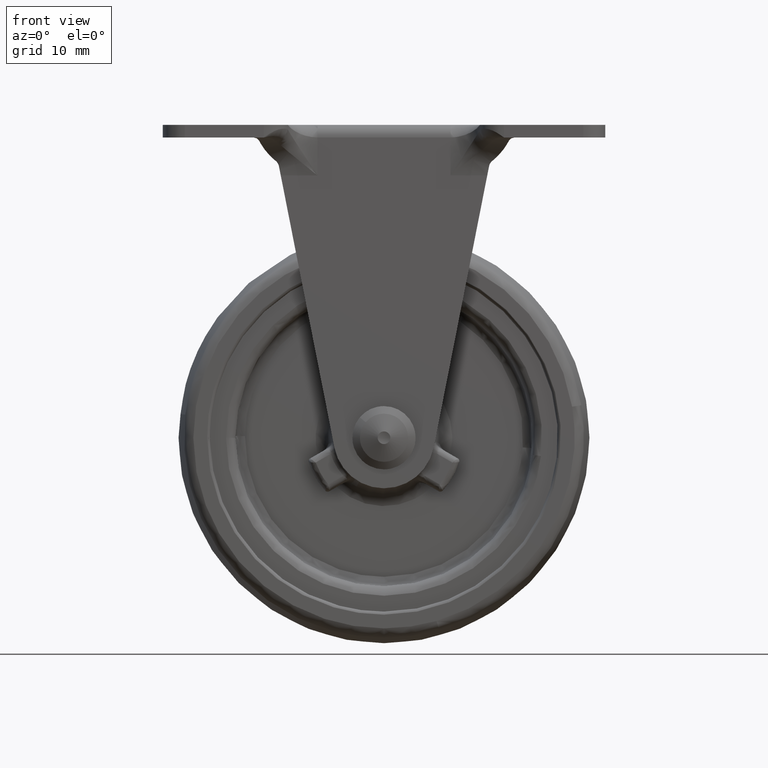
[diagram: clean part render]
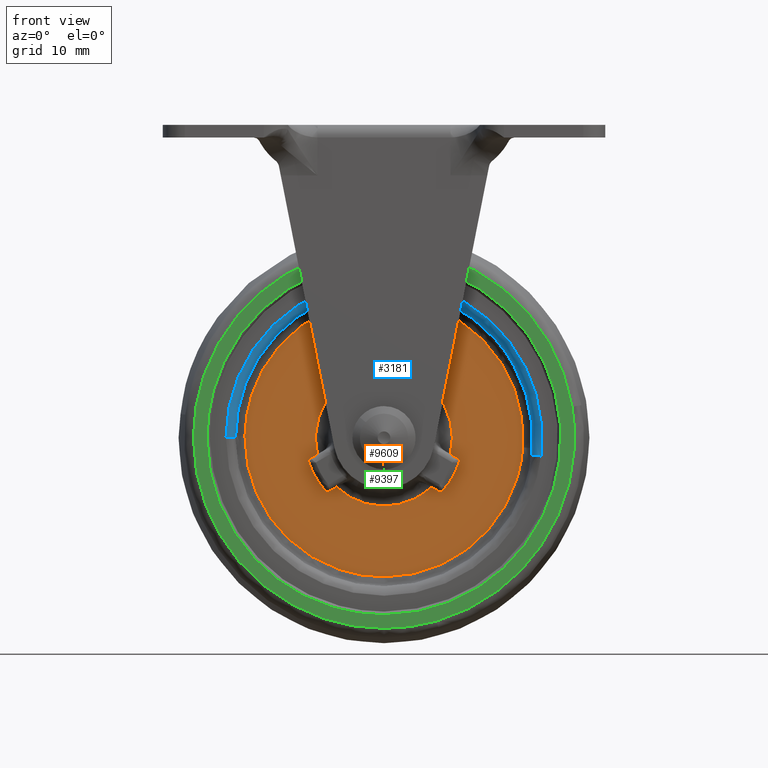
[diagram: same view with three faces highlighted in distinct colors, each labeled with its STEP entity id]
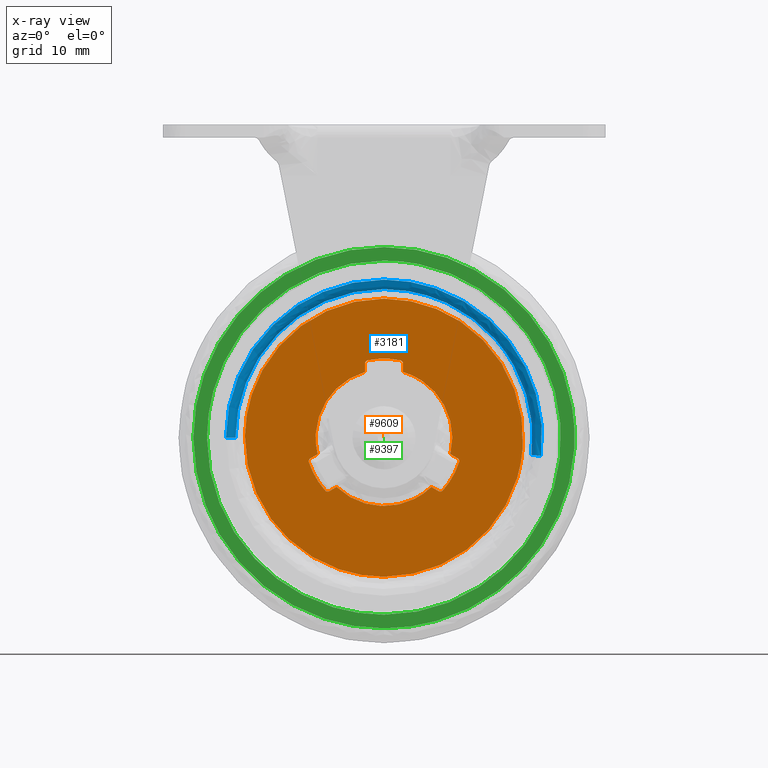
[diagram: x-ray of the same camera — body ghosted, the three highlighted faces saturated]
A machine part, front view with three faces highlighted in distinct colors.
The next image is the same camera in x-ray (body ghosted, the three faces saturated) — at least one of them is partly hidden behind the body in this view.
Their STEP definitions:

[orange] entity #9609 — the highlighted face is a freeform B-spline surface patch.
#3278=CARTESIAN_POINT('',(-45.998262989150760,-5.499999999999870,-47.723543121679739));
#3279=VERTEX_POINT('',#3278);
#3291=CARTESIAN_POINT('',(-24.0,-5.499999999999869,-25.999995999999999));
#3292=VERTEX_POINT('',#3291);
#3293=CARTESIAN_POINT('',(-24.0,-5.499999999999869,-25.999995999999999));
#3294=CARTESIAN_POINT('',(-24.982010979529850,-5.499999999999880,-25.999957823208160));
#3295=CARTESIAN_POINT('',(-26.946017736502419,-5.499999999999854,-26.131718309749779));
#3296=CARTESIAN_POINT('',(-30.146183976997069,-5.499999999999885,-26.783202365657331));
#3297=CARTESIAN_POINT('',(-33.254190081403912,-5.499999999999854,-27.939149059546271));
#3298=CARTESIAN_POINT('',(-36.059052005094557,-5.499999999999877,-29.524225523667400));
#3299=CARTESIAN_POINT('',(-38.560177870216492,-5.499999999999879,-31.406672927137478));
#3300=CARTESIAN_POINT('',(-40.518087805906433,-5.499999999999884,-33.375752485294853));
#3301=CARTESIAN_POINT('',(-42.232241590811817,-5.499999999999877,-35.608725749513361));
#3302=CARTESIAN_POINT('',(-43.484704123183043,-5.499999999999867,-37.673920440161403));
#3303=CARTESIAN_POINT('',(-44.834861749582927,-5.499999999999870,-40.644945362189027));
#3304=CARTESIAN_POINT('',(-45.750536066977027,-5.499999999999869,-43.976837344831239));
#3305=CARTESIAN_POINT('',(-45.984262688614869,-5.499999999999873,-46.607720035231068));
#3306=CARTESIAN_POINT('',(-45.998262989150760,-5.499999999999870,-47.723543121679739));
#3307=B_SPLINE_CURVE_WITH_KNOTS('',3,(#3293,#3294,#3295,#3296,#3297,#3298,#3299,#3300,#3301,#3302,#3303,#3304,#3305,#3306),.UNSPECIFIED.,.F.,.U.,(4,1,1,1,1,1,1,1,1,1,1,4),(0.000000081659664,2.946032737918472,5.892063993705015,9.775476441902150,12.855440841853660,15.533666623221171,19.149205066810701,21.157873090336221,23.969985242814030,26.380388072786769,30.933351359151271,34.281111963189481),.UNSPECIFIED.);
#3308=EDGE_CURVE('',#3292,#3279,#3307,.T.);
#3310=CARTESIAN_POINT('',(-2.053555156302315,-5.499999999999870,-49.534127536724938));
#3311=VERTEX_POINT('',#3310);
#3312=CARTESIAN_POINT('',(-2.053555156302315,-5.499999999999870,-49.534127536724938));
#3313=CARTESIAN_POINT('',(-1.925246541073994,-5.499999999999860,-47.705745235378743));
#3314=CARTESIAN_POINT('',(-2.108906257932459,-5.499999999999885,-44.395396828393181));
#3315=CARTESIAN_POINT('',(-3.385685043897567,-5.499999999999857,-39.946605080716267));
#3316=CARTESIAN_POINT('',(-5.260801342184311,-5.499999999999888,-36.241738775931182));
#3317=CARTESIAN_POINT('',(-7.463695229234387,-5.499999999999823,-33.351136120235303));
#3318=CARTESIAN_POINT('',(-10.017431120989460,-5.500000000000011,-30.911229002900491));
#3319=CARTESIAN_POINT('',(-12.482203399793979,-5.499999999999572,-29.169336853898422));
#3320=CARTESIAN_POINT('',(-15.246269047395350,-5.499999999999798,-27.750582178725530));
#3321=CARTESIAN_POINT('',(-17.595217876435409,-5.499999999999907,-26.903620184185261));
#3322=CARTESIAN_POINT('',(-20.569358046241572,-5.499999999999744,-26.194961810637480));
#3323=CARTESIAN_POINT('',(-22.590104026855840,-5.500000000000068,-25.999808461576141));
#3324=CARTESIAN_POINT('',(-24.0,-5.499999999999869,-25.999995999999999));
#3325=B_SPLINE_CURVE_WITH_KNOTS('',3,(#3312,#3313,#3314,#3315,#3316,#3317,#3318,#3319,#3320,#3321,#3322,#3323,#3324),.UNSPECIFIED.,.F.,.U.,(4,1,1,1,1,1,1,1,1,1,4),(0.000000091867442,5.498520121368934,9.869174589254833,13.816844987011949,17.905542060216600,20.725241592436159,24.390930131510942,26.928730019630532,30.030472745809568,31.863319717347149,36.092958564767159),.UNSPECIFIED.);
#3326=EDGE_CURVE('',#3311,#3292,#3325,.T.);
#3369=CARTESIAN_POINT('',(-24.0,-5.499999999999869,-69.999996000000010));
#3370=VERTEX_POINT('',#3369);
#3371=CARTESIAN_POINT('',(-24.0,-5.499999999999869,-69.999996000000010));
#3372=CARTESIAN_POINT('',(-23.011056579002972,-5.499999999999873,-70.000037746288868));
#3373=CARTESIAN_POINT('',(-21.033182365251189,-5.499999999999872,-69.866405722037882));
#3374=CARTESIAN_POINT('',(-18.204661330858070,-5.499999999999863,-69.286332413802498));
#3375=CARTESIAN_POINT('',(-15.149339060154229,-5.499999999999854,-68.235537582301163));
#3376=CARTESIAN_POINT('',(-12.282708441492980,-5.499999999999913,-66.729550567218837));
#3377=CARTESIAN_POINT('',(-9.694187248776828,-5.499999999999791,-64.793968558810860));
#3378=CARTESIAN_POINT('',(-7.778650005364352,-5.499999999999895,-62.932693356471091));
#3379=CARTESIAN_POINT('',(-6.006988974101125,-5.499999999999808,-60.766096312660650));
#3380=CARTESIAN_POINT('',(-4.526531532541039,-5.499999999999881,-58.385995195894047));
#3381=CARTESIAN_POINT('',(-3.213022184927659,-5.500000000000147,-55.434070009435580));
#3382=CARTESIAN_POINT('',(-2.392945042342785,-5.499999999999045,-52.527582331665002));
#3383=CARTESIAN_POINT('',(-2.116506838760938,-5.500000000000700,-50.434871964457081));
#3384=CARTESIAN_POINT('',(-2.053555156302315,-5.499999999999870,-49.534127536724938));
#3385=B_SPLINE_CURVE_WITH_KNOTS('',3,(#3371,#3372,#3373,#3374,#3375,#3376,#3377,#3378,#3379,#3380,#3381,#3382,#3383,#3384),.UNSPECIFIED.,.F.,.U.,(4,1,1,1,1,1,1,1,1,1,1,4),(0.000000074945177,2.966827643372710,5.933666677581261,8.642526960276875,12.641333136993669,15.608159254871969,18.316978037274861,20.638841195997841,23.992682041133801,26.701537706027651,30.313354762854480,33.022188892031863),.UNSPECIFIED.);
#3386=EDGE_CURVE('',#3370,#3311,#3385,.T.);
#3388=CARTESIAN_POINT('',(-45.998262989150760,-5.499999999999870,-47.723543121679739));
#3389=CARTESIAN_POINT('',(-46.018433669497249,-5.499999999999885,-49.310917432043802));
#3390=CARTESIAN_POINT('',(-45.730473191089217,-5.499999999999845,-52.308220028778393));
#3391=CARTESIAN_POINT('',(-44.586634245755647,-5.499999999999901,-56.008526372964511));
#3392=CARTESIAN_POINT('',(-42.991252262770267,-5.499999999999836,-59.274546232931513));
#3393=CARTESIAN_POINT('',(-41.201139291775007,-5.499999999999937,-61.858013077849790));
#3394=CARTESIAN_POINT('',(-38.820369167180367,-5.499999999999860,-64.360056390864415));
#3395=CARTESIAN_POINT('',(-36.641238951500370,-5.499999999999864,-66.079326986456962));
#3396=CARTESIAN_POINT('',(-33.955939647506213,-5.499999999999880,-67.693336310670830));
#3397=CARTESIAN_POINT('',(-31.365224273467430,-5.499999999999866,-68.813839897963831));
#3398=CARTESIAN_POINT('',(-27.855235534752349,-5.499999999999869,-69.758308427291865));
#3399=CARTESIAN_POINT('',(-25.496791687907869,-5.499999999999868,-70.000226523240514));
#3400=CARTESIAN_POINT('',(-24.0,-5.499999999999869,-69.999996000000010));
#3401=B_SPLINE_CURVE_WITH_KNOTS('',3,(#3388,#3389,#3390,#3391,#3392,#3393,#3394,#3395,#3396,#3397,#3398,#3399,#3400),.UNSPECIFIED.,.F.,.U.,(4,1,1,1,1,1,1,1,1,1,4),(0.000000085418876,4.762465655282668,8.980651805932158,11.565996852790169,15.648102333301470,18.369468243408701,21.907337732774959,23.948398352786558,27.758381943911189,30.343714610775720,34.834034870473431),.UNSPECIFIED.);
#3402=EDGE_CURVE('',#3279,#3370,#3401,.T.);
#8278=CARTESIAN_POINT('',(-34.499248944710253,-5.499999999999880,-50.597639485232797));
#8279=VERTEX_POINT('',#8278);
#8287=CARTESIAN_POINT('',(-35.664276000000001,-5.499999999999840,-51.270268399999892));
#8288=VERTEX_POINT('',#8287);
#8289=CARTESIAN_POINT('',(-34.499248944710253,-5.499999999999880,-50.597639485232797));
#8290=CARTESIAN_POINT('',(-35.664276000000001,-5.499999999999840,-51.270268399999892));
#8291=QUASI_UNIFORM_CURVE('',1,(#8289,#8290),.UNSPECIFIED.,.F.,.U.);
#8292=EDGE_CURVE('',#8279,#8288,#8291,.T.);
#8307=CARTESIAN_POINT('',(-31.499248722179701,-5.499999999999880,-55.793791524791402));
#8308=VERTEX_POINT('',#8307);
#8318=CARTESIAN_POINT('',(-32.664275153218099,-5.499999999999840,-56.466420011110102));
#8319=VERTEX_POINT('',#8318);
#8325=CARTESIAN_POINT('',(-32.664275153218099,-5.499999999999840,-56.466420011110102));
#8326=CARTESIAN_POINT('',(-31.499248722179701,-5.499999999999880,-55.793791524791402));
#8327=QUASI_UNIFORM_CURVE('',1,(#8325,#8326),.UNSPECIFIED.,.F.,.U.);
#8328=EDGE_CURVE('',#8319,#8308,#8327,.T.);
#8349=CARTESIAN_POINT('',(-33.285703331859047,-5.499999999999840,-56.368132807719100));
#8350=VERTEX_POINT('',#8349);
#8356=CARTESIAN_POINT('',(-33.285703331859047,-5.499999999999840,-56.368132807719100));
#8357=CARTESIAN_POINT('',(-33.243027695556613,-5.499999999999847,-56.415541953159419));
#8358=CARTESIAN_POINT('',(-33.127727149132390,-5.499999999999838,-56.502513219756082));
#8359=CARTESIAN_POINT('',(-32.900312104875333,-5.499999999999835,-56.553470129274551));
#8360=CARTESIAN_POINT('',(-32.737878542838580,-5.499999999999851,-56.509147824119466));
#8361=CARTESIAN_POINT('',(-32.664275153218099,-5.499999999999840,-56.466420011110102));
#8362=B_SPLINE_CURVE_WITH_KNOTS('',3,(#8356,#8357,#8358,#8359,#8360,#8361),.UNSPECIFIED.,.F.,.U.,(4,1,1,4),(0.000000429992953,0.191400140864449,0.425296390139436,0.680514135270046),.UNSPECIFIED.);
#8363=EDGE_CURVE('',#8350,#8319,#8362,.T.);
#8384=CARTESIAN_POINT('',(-35.889870174236101,-5.499999999999840,-51.857584267274198));
#8385=VERTEX_POINT('',#8384);
#8391=CARTESIAN_POINT('',(-35.889870174236101,-5.499999999999840,-51.857584267274198));
#8392=CARTESIAN_POINT('',(-35.704348008586862,-5.499999999999848,-52.429430977823607));
#8393=CARTESIAN_POINT('',(-35.044446094462359,-5.499999999999826,-54.054020867724446));
#8394=CARTESIAN_POINT('',(-34.054449289562861,-5.499999999999814,-55.515805678044039));
#8395=CARTESIAN_POINT('',(-33.285703331859047,-5.499999999999840,-56.368132807719100));
#8396=B_SPLINE_CURVE_WITH_KNOTS('',3,(#8391,#8392,#8393,#8394,#8395),.UNSPECIFIED.,.F.,.U.,(4,1,4),(3.100180E-009,1.803588280772573,5.246802119850520),.UNSPECIFIED.);
#8397=EDGE_CURVE('',#8385,#8350,#8396,.T.);
#8419=CARTESIAN_POINT('',(-35.664276000000001,-5.499999999999840,-51.270268399999892));
#8420=CARTESIAN_POINT('',(-35.719553459745988,-5.499999999999842,-51.302126039224277));
#8421=CARTESIAN_POINT('',(-35.817619376649510,-5.499999999999843,-51.387351434205421));
#8422=CARTESIAN_POINT('',(-35.922944818275951,-5.499999999999839,-51.592983830928489));
#8423=CARTESIAN_POINT('',(-35.920886971149791,-5.499999999999843,-51.763208150449650));
#8424=CARTESIAN_POINT('',(-35.889870174236101,-5.499999999999840,-51.857584267274198));
#8425=B_SPLINE_CURVE_WITH_KNOTS('',3,(#8419,#8420,#8421,#8422,#8423,#8424),.UNSPECIFIED.,.F.,.U.,(4,1,1,4),(0.000000429992333,0.191399940614591,0.382761367274063,0.680513423333204),.UNSPECIFIED.);
#8426=EDGE_CURVE('',#8288,#8385,#8425,.T.);
#8622=CARTESIAN_POINT('',(-21.000000775831548,-5.499999999999880,-37.608557950607597));
#8623=VERTEX_POINT('',#8622);
#8631=CARTESIAN_POINT('',(-21.000000975694899,-5.499999999999840,-36.263301123580099));
#8632=VERTEX_POINT('',#8631);
#8633=CARTESIAN_POINT('',(-21.000000975694899,-5.499999999999840,-36.263301123580099));
#8634=CARTESIAN_POINT('',(-21.000000775831548,-5.499999999999880,-37.608557950607597));
#8635=QUASI_UNIFORM_CURVE('',1,(#8633,#8634),.UNSPECIFIED.,.F.,.U.);
#8636=EDGE_CURVE('',#8632,#8623,#8635,.T.);
#8651=CARTESIAN_POINT('',(-27.000000555280948,-5.499999999999880,-37.608558334898703));
#8652=VERTEX_POINT('',#8651);
#8662=CARTESIAN_POINT('',(-27.000000696222848,-5.499999999999840,-36.263301606379748));
#8663=VERTEX_POINT('',#8662);
#8669=CARTESIAN_POINT('',(-27.000000555280948,-5.499999999999880,-37.608558334898703));
#8670=CARTESIAN_POINT('',(-27.000000696222848,-5.499999999999840,-36.263301606379748));
#8671=QUASI_UNIFORM_CURVE('',1,(#8669,#8670),.UNSPECIFIED.,.F.,.U.);
#8672=EDGE_CURVE('',#8652,#8663,#8671,.T.);
#8691=CARTESIAN_POINT('',(-21.395834349682200,-5.499999999999840,-35.774272247775599));
#8692=VERTEX_POINT('',#8691);
#8700=CARTESIAN_POINT('',(-21.000000975694899,-5.499999999999840,-36.263301123580099));
#8701=CARTESIAN_POINT('',(-20.999800968762880,-5.499999999999832,-36.178196866338780));
#8702=CARTESIAN_POINT('',(-21.042618878694348,-5.499999999999847,-36.015352403844467));
#8703=CARTESIAN_POINT('',(-21.200481338508659,-5.499999999999839,-35.843904490849241));
#8704=CARTESIAN_POINT('',(-21.333435920430130,-5.499999999999852,-35.787523548716869));
#8705=CARTESIAN_POINT('',(-21.395834349682200,-5.499999999999840,-35.774272247775599));
#8706=B_SPLINE_CURVE_WITH_KNOTS('',3,(#8700,#8701,#8702,#8703,#8704,#8705),.UNSPECIFIED.,.F.,.U.,(4,1,1,4),(0.000000429995102,0.255218154322843,0.489114384541607,0.680514079814373),.UNSPECIFIED.);
#8707=EDGE_CURVE('',#8632,#8692,#8706,.T.);
#8726=CARTESIAN_POINT('',(-26.604167391898802,-5.499999999999840,-35.774272618744803));
#8727=VERTEX_POINT('',#8726);
#8735=CARTESIAN_POINT('',(-21.395834349682200,-5.499999999999840,-35.774272247775599));
#8736=CARTESIAN_POINT('',(-22.518346640615722,-5.499999999999854,-35.534717347445657));
#8737=CARTESIAN_POINT('',(-24.279282806365480,-5.499999999999822,-35.408177234310827));
#8738=CARTESIAN_POINT('',(-26.016172804179760,-5.499999999999848,-35.649022346776903));
#8739=CARTESIAN_POINT('',(-26.604167391898802,-5.499999999999840,-35.774272618744803));
#8740=B_SPLINE_CURVE_WITH_KNOTS('',3,(#8735,#8736,#8737,#8738,#8739),.UNSPECIFIED.,.F.,.U.,(4,1,4),(3.101439E-009,3.443213842178696,5.246802119850504),.UNSPECIFIED.);
#8741=EDGE_CURVE('',#8692,#8727,#8740,.T.);
#8763=CARTESIAN_POINT('',(-26.604167391898802,-5.499999999999840,-35.774272618744803));
#8764=CARTESIAN_POINT('',(-26.680487625060788,-5.499999999999842,-35.790394331028381));
#8765=CARTESIAN_POINT('',(-26.792143535260859,-5.499999999999843,-35.843742233895327));
#8766=CARTESIAN_POINT('',(-26.950721783234240,-5.499999999999837,-36.008615178531407));
#8767=CARTESIAN_POINT('',(-27.000502245954820,-5.499999999999849,-36.156800762337340));
#8768=CARTESIAN_POINT('',(-27.000000696222848,-5.499999999999840,-36.263301606379748));
#8769=B_SPLINE_CURVE_WITH_KNOTS('',3,(#8763,#8764,#8765,#8766,#8767,#8768),.UNSPECIFIED.,.F.,.U.,(4,1,1,4),(0.000000429995075,0.233935091301050,0.361483203318142,0.680514135270002),.UNSPECIFIED.);
#8770=EDGE_CURVE('',#8727,#8663,#8769,.T.);
#8964=CARTESIAN_POINT('',(-13.500750722539360,-5.499999999999880,-50.597638140309897));
#8965=VERTEX_POINT('',#8964);
#8975=CARTESIAN_POINT('',(-12.335724150559020,-5.499999999999880,-51.270266382510201));
#8976=VERTEX_POINT('',#8975);
#8982=CARTESIAN_POINT('',(-12.335724150559020,-5.499999999999880,-51.270266382510201));
#8983=CARTESIAN_POINT('',(-13.500750722539360,-5.499999999999880,-50.597638140309897));
#8984=QUASI_UNIFORM_CURVE('',1,(#8982,#8983),.UNSPECIFIED.,.F.,.U.);
#8985=EDGE_CURVE('',#8976,#8965,#8984,.T.);
#8997=CARTESIAN_POINT('',(-16.500750279458149,-5.499999999999880,-55.793790564159700));
#8998=VERTEX_POINT('',#8997);
#9006=CARTESIAN_POINT('',(-15.335723592706250,-5.499999999999840,-56.466418804586702));
#9007=VERTEX_POINT('',#9006);
#9008=CARTESIAN_POINT('',(-16.500750279458149,-5.499999999999880,-55.793790564159700));
#9009=CARTESIAN_POINT('',(-15.335723592706250,-5.499999999999840,-56.466418804586702));
#9010=QUASI_UNIFORM_CURVE('',1,(#9008,#9009),.UNSPECIFIED.,.F.,.U.);
#9011=EDGE_CURVE('',#8998,#9007,#9010,.T.);
#9037=CARTESIAN_POINT('',(-12.110129276242199,-5.499999999999840,-51.857582573536199));
#9038=VERTEX_POINT('',#9037);
#9044=CARTESIAN_POINT('',(-12.110129276242199,-5.499999999999840,-51.857582573536199));
#9045=CARTESIAN_POINT('',(-12.085932041858980,-5.499999999999831,-51.783435523344977));
#9046=CARTESIAN_POINT('',(-12.073943832314789,-5.499999999999821,-51.630964774173087));
#9047=CARTESIAN_POINT('',(-12.157123382724031,-5.499999999999865,-51.414380671254513));
#9048=CARTESIAN_POINT('',(-12.268122520167889,-5.499999999999841,-51.309159771455718));
#9049=CARTESIAN_POINT('',(-12.335724150559020,-5.499999999999880,-51.270266382510201));
#9050=B_SPLINE_CURVE_WITH_KNOTS('',3,(#9044,#9045,#9046,#9047,#9048,#9049),.UNSPECIFIED.,.F.,.U.,(4,1,1,4),(0.000000429995115,0.233935091301525,0.446579473963942,0.680514135269936),.UNSPECIFIED.);
#9051=EDGE_CURVE('',#9038,#8976,#9050,.T.);
#9072=CARTESIAN_POINT('',(-14.714295476081720,-5.499999999999840,-56.368131484950297));
#9073=VERTEX_POINT('',#9072);
#9079=CARTESIAN_POINT('',(-14.714295476081720,-5.499999999999840,-56.368131484950297));
#9080=CARTESIAN_POINT('',(-14.092159354662140,-5.499999999999829,-55.678038559997638));
#9081=CARTESIAN_POINT('',(-13.067110724642969,-5.499999999999861,-54.247600801775278));
#9082=CARTESIAN_POINT('',(-12.363027995667670,-5.499999999999821,-52.637414404902771));
#9083=CARTESIAN_POINT('',(-12.110129276242199,-5.499999999999840,-51.857582573536199));
#9084=B_SPLINE_CURVE_WITH_KNOTS('',3,(#9079,#9080,#9081,#9082,#9083),.UNSPECIFIED.,.F.,.U.,(4,1,4),(3.100520E-009,2.787363553443444,5.246802119850513),.UNSPECIFIED.);
#9085=EDGE_CURVE('',#9073,#9038,#9084,.T.);
#9107=CARTESIAN_POINT('',(-15.335723592706250,-5.499999999999840,-56.466418804586702));
#9108=CARTESIAN_POINT('',(-15.280501517980740,-5.499999999999837,-56.498332809601123));
#9109=CARTESIAN_POINT('',(-15.137148639033240,-5.499999999999840,-56.547892255373547));
#9110=CARTESIAN_POINT('',(-14.904460186849191,-5.499999999999848,-56.521142532383529));
#9111=CARTESIAN_POINT('',(-14.766420285410570,-5.499999999999835,-56.426127152021799));
#9112=CARTESIAN_POINT('',(-14.714295476081720,-5.499999999999840,-56.368131484950297));
#9113=B_SPLINE_CURVE_WITH_KNOTS('',3,(#9107,#9108,#9109,#9110,#9111,#9112),.UNSPECIFIED.,.F.,.U.,(4,1,1,4),(0.000000429994831,0.191400125267491,0.446579437572952,0.680514079814406),.UNSPECIFIED.);
#9114=EDGE_CURVE('',#9007,#9073,#9113,.T.);
#9478=CARTESIAN_POINT('',(-13.500750722539360,-5.499999999999880,-50.597638140309897));
#9479=CARTESIAN_POINT('',(-13.314060387677230,-5.499999999999874,-49.843554159478238));
#9480=CARTESIAN_POINT('',(-13.098325713899539,-5.499999999999903,-48.251935685542541));
#9481=CARTESIAN_POINT('',(-13.286275489127460,-5.499999999999867,-46.088190083035180));
#9482=CARTESIAN_POINT('',(-13.845144916223370,-5.499999999999891,-44.131824619538968));
#9483=CARTESIAN_POINT('',(-14.741824812167570,-5.499999999999833,-42.255048830127301));
#9484=CARTESIAN_POINT('',(-16.145673542255100,-5.499999999999997,-40.428352621803391));
#9485=CARTESIAN_POINT('',(-18.258357903484960,-5.499999999999799,-38.691690998445253));
#9486=CARTESIAN_POINT('',(-19.963155189445260,-5.499999999999950,-37.907326461062837));
#9487=CARTESIAN_POINT('',(-21.000000775831548,-5.499999999999880,-37.608557950607597));
#9488=B_SPLINE_CURVE_WITH_KNOTS('',3,(#9478,#9479,#9480,#9481,#9482,#9483,#9484,#9485,#9486,#9487),.UNSPECIFIED.,.F.,.U.,(4,1,1,1,1,1,1,4),(0.000000081344051,2.330552849119416,4.790627141450091,6.473851218495623,8.415935071516142,11.005481949908139,13.336068135626141,16.572974125457009),.UNSPECIFIED.);
#9489=EDGE_CURVE('',#8965,#8623,#9488,.T.);
#9552=CARTESIAN_POINT('',(-48.195857445404293,-5.499999999999881,-72.197792197354815));
#9553=CARTESIAN_POINT('',(-48.195857445404293,-5.499999999999881,-23.802195081957350));
#9554=CARTESIAN_POINT('',(0.195184717236409,-5.499999999999880,-72.197792197354815));
#9555=CARTESIAN_POINT('',(0.195184717236409,-5.499999999999880,-23.802195081957350));
#9556=B_SPLINE_SURFACE_WITH_KNOTS('',1,1,((#9552,#9554),(#9553,#9555)),.UNSPECIFIED.,.F.,.F.,.U.,(2,2),(2,2),(0.0,48.395597115397457),(0.0,48.391042162640701),.UNSPECIFIED.);
#9557=ORIENTED_EDGE('',*,*,#3386,.T.);
#9558=ORIENTED_EDGE('',*,*,#3326,.T.);
#9559=ORIENTED_EDGE('',*,*,#3308,.T.);
#9560=ORIENTED_EDGE('',*,*,#3402,.T.);
#9561=EDGE_LOOP('',(#9557,#9558,#9559,#9560));
#9562=FACE_OUTER_BOUND('',#9561,.T.);
#9563=CARTESIAN_POINT('',(-31.499248722179701,-5.499999999999880,-55.793791524791402));
#9564=CARTESIAN_POINT('',(-30.939543207693639,-5.499999999999887,-56.332525932699269));
#9565=CARTESIAN_POINT('',(-29.737674551786981,-5.499999999999894,-57.261974783143337));
#9566=CARTESIAN_POINT('',(-27.783482516531819,-5.499999999999823,-58.203384527442502));
#9567=CARTESIAN_POINT('',(-25.813905396044639,-5.499999999999971,-58.721762403124139));
#9568=CARTESIAN_POINT('',(-24.085838477362731,-5.499999999999826,-58.856450928255747));
#9569=CARTESIAN_POINT('',(-22.447125728557751,-5.499999999999899,-58.738522859154401));
#9570=CARTESIAN_POINT('',(-20.838094668272010,-5.499999999999913,-58.396443103996042));
#9571=CARTESIAN_POINT('',(-18.702674920148421,-5.499999999999772,-57.550993613251542));
#9572=CARTESIAN_POINT('',(-17.277976069064639,-5.499999999999952,-56.542257004568171));
#9573=CARTESIAN_POINT('',(-16.500750279458149,-5.499999999999880,-55.793790564159700));
#9574=B_SPLINE_CURVE_WITH_KNOTS('',3,(#9563,#9564,#9565,#9566,#9567,#9568,#9569,#9570,#9571,#9572,#9573),.UNSPECIFIED.,.F.,.U.,(4,1,1,1,1,1,1,1,4),(0.000000081331940,2.330552849111141,4.531678813178107,6.473851218492756,8.415935071514792,9.710720509854305,11.393907283966310,13.336068135625551,16.572974125457058),.UNSPECIFIED.);
#9575=EDGE_CURVE('',#8308,#8998,#9574,.T.);
#9576=ORIENTED_EDGE('',*,*,#9575,.F.);
#9577=ORIENTED_EDGE('',*,*,#8328,.F.);
#9578=ORIENTED_EDGE('',*,*,#8363,.F.);
#9579=ORIENTED_EDGE('',*,*,#8397,.F.);
#9580=ORIENTED_EDGE('',*,*,#8426,.F.);
#9581=ORIENTED_EDGE('',*,*,#8292,.F.);
#9582=CARTESIAN_POINT('',(-27.000000555280948,-5.499999999999880,-37.608558334898703));
#9583=CARTESIAN_POINT('',(-27.746411740981198,-5.499999999999874,-37.823908643664673));
#9584=CARTESIAN_POINT('',(-29.152261502724372,-5.499999999999901,-38.400047228680471));
#9585=CARTESIAN_POINT('',(-31.088106768835441,-5.499999999999881,-39.719383016153621));
#9586=CARTESIAN_POINT('',(-32.490137370084071,-5.499999999999869,-41.203417838054357));
#9587=CARTESIAN_POINT('',(-33.623489835355478,-5.499999999999887,-42.942906187657641));
#9588=CARTESIAN_POINT('',(-34.391227718597669,-5.499999999999883,-44.739127223074263));
#9589=CARTESIAN_POINT('',(-34.770848629752479,-5.499999999999875,-46.608684035287681));
#9590=CARTESIAN_POINT('',(-34.857887169303893,-5.499999999999891,-48.552376092817198));
#9591=CARTESIAN_POINT('',(-34.696375264294133,-5.499999999999877,-49.801655224958381));
#9592=CARTESIAN_POINT('',(-34.499248944710253,-5.499999999999880,-50.597639485232797));
#9593=B_SPLINE_CURVE_WITH_KNOTS('',3,(#9582,#9583,#9584,#9585,#9586,#9587,#9588,#9589,#9590,#9591,#9592),.UNSPECIFIED.,.F.,.U.,(4,1,1,1,1,1,1,1,4),(0.000000081347075,2.330552849122409,4.531678813186067,6.991753906632905,8.415935071517188,10.746516375099890,12.818165682961910,14.112928355459371,16.572974125457119),.UNSPECIFIED.);
#9594=EDGE_CURVE('',#8652,#8279,#9593,.T.);
#9595=ORIENTED_EDGE('',*,*,#9594,.F.);
#9596=ORIENTED_EDGE('',*,*,#8672,.T.);
#9597=ORIENTED_EDGE('',*,*,#8770,.F.);
#9598=ORIENTED_EDGE('',*,*,#8741,.F.);
#9599=ORIENTED_EDGE('',*,*,#8707,.F.);
#9600=ORIENTED_EDGE('',*,*,#8636,.T.);
#9601=ORIENTED_EDGE('',*,*,#9489,.F.);
#9602=ORIENTED_EDGE('',*,*,#8985,.F.);
#9603=ORIENTED_EDGE('',*,*,#9051,.F.);
#9604=ORIENTED_EDGE('',*,*,#9085,.F.);
#9605=ORIENTED_EDGE('',*,*,#9114,.F.);
#9606=ORIENTED_EDGE('',*,*,#9011,.F.);
#9607=EDGE_LOOP('',(#9576,#9577,#9578,#9579,#9580,#9581,#9595,#9596,#9597,#9598,#9599,#9600,#9601,#9602,#9603,#9604,#9605,#9606));
#9608=FACE_BOUND('',#9607,.T.);
#9609=ADVANCED_FACE('',(#9562,#9608),#9556,.F.);

[blue] entity #3181 — the highlighted face is a freeform B-spline surface patch.
#513=CARTESIAN_POINT('',(-20.246370707267911,-8.499999999989875,-24.801714444403189));
#514=VERTEX_POINT('',#513);
#515=CARTESIAN_POINT('',(-24.0,-8.500000000000000,-24.499995999999999));
#516=VERTEX_POINT('',#515);
#517=CARTESIAN_POINT('',(-20.246370707267911,-8.499999999989875,-24.801714444403189));
#518=CARTESIAN_POINT('',(-21.486824960605500,-8.499999999992468,-24.600956689566448));
#519=CARTESIAN_POINT('',(-22.743405314069982,-8.499999999995859,-24.499932151860278));
#520=CARTESIAN_POINT('',(-24.0,-8.500000000000000,-24.499995999999999));
#521=B_SPLINE_CURVE_WITH_KNOTS('',3,(#517,#518,#519,#520),.UNSPECIFIED.,.F.,.U.,(4,4),(6.954095E-010,3.769792424293194),.UNSPECIFIED.);
#522=EDGE_CURVE('',#514,#516,#521,.T.);
#524=CARTESIAN_POINT('',(-47.500000000000000,-8.500000000081881,-47.999996000000010));
#525=VERTEX_POINT('',#524);
#526=CARTESIAN_POINT('',(-24.0,-8.500000000000000,-24.499995999999999));
#527=CARTESIAN_POINT('',(-25.874569358688628,-8.499999999999996,-24.499535894286151));
#528=CARTESIAN_POINT('',(-28.950487592833952,-8.500000000001316,-24.870114002174940));
#529=CARTESIAN_POINT('',(-32.753471260595383,-8.500000000005580,-26.113654851381170));
#530=CARTESIAN_POINT('',(-35.786770453416800,-8.500000000010857,-27.582595745486820));
#531=CARTESIAN_POINT('',(-38.392717118671271,-8.500000000016643,-29.323801105248268));
#532=CARTESIAN_POINT('',(-40.688875440059022,-8.500000000024160,-31.379524996704671));
#533=CARTESIAN_POINT('',(-42.857357484407082,-8.500000000032458,-33.831640632703497));
#534=CARTESIAN_POINT('',(-44.620900797403053,-8.500000000041718,-36.542468267577618));
#535=CARTESIAN_POINT('',(-46.054700136709357,-8.500000000053065,-39.698621158194662));
#536=CARTESIAN_POINT('',(-47.171042997110618,-8.500000000065718,-43.337846479191022));
#537=CARTESIAN_POINT('',(-47.500327187737120,-8.500000000075376,-46.221572208678467));
#538=CARTESIAN_POINT('',(-47.500000000000000,-8.500000000081881,-47.999996000000010));
#539=B_SPLINE_CURVE_WITH_KNOTS('',3,(#526,#527,#528,#529,#530,#531,#532,#533,#534,#535,#536,#537,#538),.UNSPECIFIED.,.F.,.U.,(4,1,1,1,1,1,1,1,1,1,4),(0.000000081992660,5.623581030387321,9.228443463703322,11.968140145601470,15.717197728009930,18.601029840457560,21.196566135566041,25.522399808390851,28.262107208695589,31.578579607130390,36.913771586584808),.UNSPECIFIED.);
#540=EDGE_CURVE('',#516,#525,#539,.T.);
#560=CARTESIAN_POINT('',(-0.657176488560800,-8.500000000117774,-50.713405389274158));
#561=VERTEX_POINT('',#560);
#578=CARTESIAN_POINT('',(-6.399540588639304,-8.500000000000922,-32.428424836207810));
#579=VERTEX_POINT('',#578);
#580=CARTESIAN_POINT('',(-0.657176488560800,-8.500000000117774,-50.713405389274158));
#581=CARTESIAN_POINT('',(-0.538439979581041,-8.500000000109795,-49.692121726153211));
#582=CARTESIAN_POINT('',(-0.424907355481088,-8.500000000092637,-47.428111502504940));
#583=CARTESIAN_POINT('',(-0.711363782689352,-8.500000000071042,-44.399124244632212));
#584=CARTESIAN_POINT('',(-1.437506999031611,-8.500000000049621,-41.186018972166138));
#585=CARTESIAN_POINT('',(-2.580316837807539,-8.500000000030394,-38.088920528080607));
#586=CARTESIAN_POINT('',(-4.330754805918454,-8.500000000013262,-34.991080453704150));
#587=CARTESIAN_POINT('',(-5.718238852690380,-8.500000000004198,-33.198456338327638));
#588=CARTESIAN_POINT('',(-6.399540588639304,-8.500000000000922,-32.428424836207810));
#589=B_SPLINE_CURVE_WITH_KNOTS('',3,(#580,#581,#582,#583,#584,#585,#586,#587,#588),.UNSPECIFIED.,.F.,.U.,(4,1,1,1,1,1,4),(0.000000025247012,3.084499542075214,6.785917514669508,9.099312318526771,12.954916548324430,16.656334520917309,19.740834037743891),.UNSPECIFIED.);
#590=EDGE_CURVE('',#561,#579,#589,.T.);
#699=CARTESIAN_POINT('',(-6.399540588639304,-8.500000000000922,-32.428424836207810));
#700=CARTESIAN_POINT('',(-7.317537333477088,-8.499999999996247,-31.390635450022160));
#701=CARTESIAN_POINT('',(-9.154206965051062,-8.499999999989376,-29.652067701973881));
#702=CARTESIAN_POINT('',(-12.356562049827129,-8.499999999983753,-27.474035892280892));
#703=CARTESIAN_POINT('',(-15.980110698160550,-8.499999999983029,-25.772052754077979));
#704=CARTESIAN_POINT('',(-18.754235064226940,-8.499999999986704,-25.042954337682382));
#705=CARTESIAN_POINT('',(-20.246370707267911,-8.499999999989875,-24.801714444403189));
#706=B_SPLINE_CURVE_WITH_KNOTS('',3,(#699,#700,#701,#702,#703,#704,#705),.UNSPECIFIED.,.F.,.U.,(4,1,1,1,4),(0.000000014433567,4.156616997980889,7.557498408927932,11.588139820219871,16.122632771810078),.UNSPECIFIED.);
#707=EDGE_CURVE('',#579,#514,#706,.T.);
#3084=CARTESIAN_POINT('',(0.936122187725020,-9.996388470347940,-50.898610279472074));
#3085=CARTESIAN_POINT('',(1.104026659130033,-9.996388470347938,-49.454166137844730));
#3086=CARTESIAN_POINT('',(1.104026659130033,-9.996388470347938,-47.999996000000010));
#3087=CARTESIAN_POINT('',(1.104026659130037,-9.996388470347938,-22.895969340869982));
#3088=CARTESIAN_POINT('',(-23.999999999999989,-9.996388470347938,-22.895969340869971));
#3089=CARTESIAN_POINT('',(-49.104026659130035,-9.996388470347938,-22.895969340869968));
#3090=CARTESIAN_POINT('',(-49.104026659130042,-9.996388470347938,-47.999995999999996));
#3091=CARTESIAN_POINT('',(-0.773005292332121,-10.116004456455542,-50.699938598212412));
#3092=CARTESIAN_POINT('',(-0.616609031543915,-10.116004456455546,-49.354496986219694));
#3093=CARTESIAN_POINT('',(-0.616609031543914,-10.116004456455540,-47.999995999999996));
#3094=CARTESIAN_POINT('',(-0.616609031543911,-10.116004456455544,-24.616605031543916));
#3095=CARTESIAN_POINT('',(-23.999999999999989,-10.116004456455540,-24.616605031543912));
#3096=CARTESIAN_POINT('',(-47.383390968456084,-10.116004456455544,-24.616605031543916));
#3097=CARTESIAN_POINT('',(-47.383390968456077,-10.116004456455540,-47.999995999999996));
#3098=CARTESIAN_POINT('',(-0.653550053494381,-8.395413628178586,-50.713824264092857));
#3099=CARTESIAN_POINT('',(-0.496349454782957,-8.395413628178584,-49.361463115107703));
#3100=CARTESIAN_POINT('',(-0.496349454782956,-8.395413628178586,-47.999996000000010));
#3101=CARTESIAN_POINT('',(-0.496349454782953,-8.395413628178586,-24.496345454782972));
#3102=CARTESIAN_POINT('',(-23.999999999999986,-8.395413628178586,-24.496345454782958));
#3103=CARTESIAN_POINT('',(-47.503650545217042,-8.395413628178586,-24.496345454782958));
#3104=CARTESIAN_POINT('',(-47.503650545217035,-8.395413628178586,-47.999996000000003));
#3112=(BOUNDED_SURFACE()B_SPLINE_SURFACE(2,2,((#3084,#3091,#3098),(#3085,#3092,#3099),(#3086,#3093,#3100),(#3087,#3094,#3101),(#3088,#3095,#3102),(#3089,#3096,#3103),(#3090,#3097,#3104)),.UNSPECIFIED.,.F.,.F.,.U.)B_SPLINE_SURFACE_WITH_KNOTS((3,2,2,3),(3,3),(0.0,3.327493886615485,44.921207136165087,86.514920385714703),(0.0,2.733556568283002),.UNSPECIFIED.)GEOMETRIC_REPRESENTATION_ITEM()RATIONAL_B_SPLINE_SURFACE(((0.870831857458734,0.569876271800993,0.866007998651408),(0.888744196121987,0.581598186530250,0.883821114265022),(0.910068404942746,0.595552844387328,0.905027200429095),(0.643515540478641,0.421119454821216,0.639950870581690),(0.910068404942746,0.595552844387328,0.905027200429095),(0.643515540478641,0.421119454821216,0.639950870581690),(0.910068404942746,0.595552844387328,0.905027200429095)))REPRESENTATION_ITEM('')SURFACE());
#3113=CARTESIAN_POINT('',(0.832790967559408,-10.0,-50.886601732921037));
#3114=VERTEX_POINT('',#3113);
#3115=CARTESIAN_POINT('',(-24.0,-10.0,-22.999995999999999));
#3116=VERTEX_POINT('',#3115);
#3117=CARTESIAN_POINT('',(0.832790967559408,-10.0,-50.886601732921037));
#3118=CARTESIAN_POINT('',(1.048675552136203,-10.000000000000030,-49.032503462439152));
#3119=CARTESIAN_POINT('',(1.058789850153089,-9.999999999999979,-46.159863066253763));
#3120=CARTESIAN_POINT('',(0.370807037391836,-10.000000000000030,-42.092888432667820));
#3121=CARTESIAN_POINT('',(-0.564432587348556,-9.999999999999963,-39.097216180598707));
#3122=CARTESIAN_POINT('',(-1.873889809161206,-10.000000000000069,-36.250271174657897));
#3123=CARTESIAN_POINT('',(-3.635838842626883,-9.999999999999966,-33.331014241259453));
#3124=CARTESIAN_POINT('',(-5.964904227001126,-10.000000000000160,-30.535262555031920));
#3125=CARTESIAN_POINT('',(-8.575302318448067,-9.999999999999981,-28.254842493104761));
#3126=CARTESIAN_POINT('',(-11.337277301175799,-9.999999999999989,-26.353773459052960));
#3127=CARTESIAN_POINT('',(-14.583322762171409,-10.000000000000011,-24.714050790972721));
#3128=CARTESIAN_POINT('',(-19.004234159261671,-9.999999999999998,-23.347676817264009));
#3129=CARTESIAN_POINT('',(-22.188294387147231,-10.0,-22.999688976607882));
#3130=CARTESIAN_POINT('',(-24.0,-10.0,-22.999995999999999));
#3131=B_SPLINE_CURVE_WITH_KNOTS('',3,(#3117,#3118,#3119,#3120,#3121,#3122,#3123,#3124,#3125,#3126,#3127,#3128,#3129,#3130),.UNSPECIFIED.,.F.,.U.,(4,1,1,1,1,1,1,1,1,1,1,4),(0.000000089416226,5.599763436194671,8.564359132009010,12.352457794113770,14.987651503701720,17.952274506104150,22.563770600815278,25.857782973882799,28.328275241125908,32.610480184946638,36.727971406713813,42.163042968895489),.UNSPECIFIED.);
#3132=EDGE_CURVE('',#3114,#3116,#3131,.T.);
#3133=ORIENTED_EDGE('',*,*,#3132,.T.);
#3134=CARTESIAN_POINT('',(-48.999999996858023,-10.0,-47.999996000000003));
#3135=VERTEX_POINT('',#3134);
#3136=CARTESIAN_POINT('',(-24.0,-10.0,-22.999995999999999));
#3137=CARTESIAN_POINT('',(-25.891942029908090,-10.000000000000041,-22.999618331257931));
#3138=CARTESIAN_POINT('',(-28.755185286601250,-9.999999999999963,-23.326639484302280));
#3139=CARTESIAN_POINT('',(-32.441339360963987,-10.000000000000011,-24.408028335614070));
#3140=CARTESIAN_POINT('',(-35.081088593157013,-10.000000000000030,-25.530024147966241));
#3141=CARTESIAN_POINT('',(-38.066556253741787,-9.999999999999959,-27.221111606247351));
#3142=CARTESIAN_POINT('',(-40.981205010305281,-10.000000000000020,-29.495687100657470));
#3143=CARTESIAN_POINT('',(-43.511583069639627,-9.999999999999682,-32.253566674231777));
#3144=CARTESIAN_POINT('',(-45.302775375645460,-10.000000000000581,-34.813527411941273));
#3145=CARTESIAN_POINT('',(-46.596881432306184,-9.999999999999034,-37.199330974255901));
#3146=CARTESIAN_POINT('',(-47.693999336373260,-10.000000000000520,-39.847988920359157));
#3147=CARTESIAN_POINT('',(-48.700093596203288,-9.999999999999602,-43.398143923913914));
#3148=CARTESIAN_POINT('',(-49.000240233787459,-10.000000000000149,-46.261466531113527));
#3149=CARTESIAN_POINT('',(-48.999999996858023,-10.0,-47.999996000000003));
#3150=B_SPLINE_CURVE_WITH_KNOTS('',3,(#3136,#3137,#3138,#3139,#3140,#3141,#3142,#3143,#3144,#3145,#3146,#3147,#3148,#3149),.UNSPECIFIED.,.F.,.U.,(4,1,1,1,1,1,1,1,1,1,1,4),(0.000000078713121,5.675713931310334,8.590299890750202,11.504884630249061,14.266053018704101,18.868036185063179,22.549516463577639,25.464097540324470,28.225288961312391,30.679665746710480,34.054429911607080,39.269969769508883),.UNSPECIFIED.);
#3151=EDGE_CURVE('',#3116,#3135,#3150,.T.);
#3152=ORIENTED_EDGE('',*,*,#3151,.T.);
#3153=CARTESIAN_POINT('',(-48.999999996858023,-10.0,-47.999996000000003));
#3154=CARTESIAN_POINT('',(-48.815909551403877,-10.000142284752870,-47.999995999999932));
#3155=CARTESIAN_POINT('',(-48.435537603435598,-9.929134357570254,-47.999996000000174));
#3156=CARTESIAN_POINT('',(-47.981026303517083,-9.641460958381472,-47.999995999999847));
#3157=CARTESIAN_POINT('',(-47.706430428055782,-9.289188283789875,-47.999996000000117));
#3158=CARTESIAN_POINT('',(-47.541517754765820,-8.917191942680494,-47.999995999999811));
#3159=CARTESIAN_POINT('',(-47.499915323916369,-8.659543637162459,-47.999995999999982));
#3160=CARTESIAN_POINT('',(-47.500000000000000,-8.500000000081881,-47.999996000000010));
#3161=B_SPLINE_CURVE_WITH_KNOTS('',3,(#3153,#3154,#3155,#3156,#3157,#3158,#3159,#3160),.UNSPECIFIED.,.F.,.U.,(4,1,1,1,1,4),(0.000000326283521,0.552244124102623,1.141358643473707,1.583101368231410,1.877644653105609,2.356253615347407),.UNSPECIFIED.);
#3162=EDGE_CURVE('',#3135,#525,#3161,.T.);
#3163=ORIENTED_EDGE('',*,*,#3162,.T.);
#3164=ORIENTED_EDGE('',*,*,#540,.F.);
#3165=ORIENTED_EDGE('',*,*,#522,.F.);
#3166=ORIENTED_EDGE('',*,*,#707,.F.);
#3167=ORIENTED_EDGE('',*,*,#590,.F.);
#3168=CARTESIAN_POINT('',(0.832790967559408,-10.0,-50.886601732921037));
#3169=CARTESIAN_POINT('',(0.625523295745991,-10.000272874997890,-50.862508587272032));
#3170=CARTESIAN_POINT('',(0.272225786858172,-9.924501737940950,-50.821440685733201));
#3171=CARTESIAN_POINT('',(-0.112913426602315,-9.678883368539355,-50.776671450469081));
#3172=CARTESIAN_POINT('',(-0.383217757100867,-9.393098093225277,-50.745250816736117));
#3173=CARTESIAN_POINT('',(-0.595801939531760,-9.015335342388074,-50.720539670899342));
#3174=CARTESIAN_POINT('',(-0.657336489486984,-8.684094604953412,-50.713386790484201));
#3175=CARTESIAN_POINT('',(-0.657176488560800,-8.500000000117774,-50.713405389274158));
#3176=B_SPLINE_CURVE_WITH_KNOTS('',3,(#3168,#3169,#3170,#3171,#3172,#3173,#3174,#3175),.UNSPECIFIED.,.F.,.U.,(4,1,1,1,1,4),(0.000000326285584,0.625883173100904,1.067693069936491,1.362187468719122,1.804009817820889,2.356253615732743),.UNSPECIFIED.);
#3177=EDGE_CURVE('',#3114,#561,#3176,.T.);
#3178=ORIENTED_EDGE('',*,*,#3177,.F.);
#3179=EDGE_LOOP('',(#3133,#3152,#3163,#3164,#3165,#3166,#3167,#3178));
#3180=FACE_OUTER_BOUND('',#3179,.T.);
#3181=ADVANCED_FACE('',(#3180),#3112,.T.);

[green] entity #9397 — the highlighted face is a freeform B-spline surface patch.
#2643=CARTESIAN_POINT('',(5.756112784111831,-10.500000000000000,-43.095244027652512));
#2644=VERTEX_POINT('',#2643);
#2655=CARTESIAN_POINT('',(-15.692286151948540,-10.500000000000000,-76.990765741479123));
#2656=VERTEX_POINT('',#2655);
#2657=CARTESIAN_POINT('',(-15.692286151948540,-10.500000000000000,-76.990765741479123));
#2658=CARTESIAN_POINT('',(-13.769759988483470,-10.500000000000011,-76.440108435804220));
#2659=CARTESIAN_POINT('',(-10.942151974321151,-10.499999999999980,-75.314984003246295));
#2660=CARTESIAN_POINT('',(-6.892396196069652,-10.500000000000011,-72.946636959357591));
#2661=CARTESIAN_POINT('',(-3.186212960066518,-10.500000000000000,-70.054246948735525));
#2662=CARTESIAN_POINT('',(0.092701834660002,-10.500000000000011,-66.361805558451380));
#2663=CARTESIAN_POINT('',(2.265952861493653,-10.500000000000011,-62.926865820590223));
#2664=CARTESIAN_POINT('',(3.718439090295679,-10.500000000000091,-60.008992468201072));
#2665=CARTESIAN_POINT('',(4.814216210555569,-10.499999999999989,-57.118816492393307));
#2666=CARTESIAN_POINT('',(5.758004598957106,-10.499999999999760,-53.402978569390342));
#2667=CARTESIAN_POINT('',(6.311248263619261,-10.500000000000920,-48.736579518026957));
#2668=CARTESIAN_POINT('',(6.090952107229693,-10.499999999998771,-45.124768617014567));
#2669=CARTESIAN_POINT('',(5.756112784111831,-10.500000000000000,-43.095244027652512));
#2670=B_SPLINE_CURVE_WITH_KNOTS('',3,(#2657,#2658,#2659,#2660,#2661,#2662,#2663,#2664,#2665,#2666,#2667,#2668,#2669),.UNSPECIFIED.,.F.,.U.,(4,1,1,1,1,1,1,1,1,1,4),(0.000000063063887,5.999419575812695,9.084867939382200,14.055846863151650,20.055319352082691,23.826330270406029,26.226109610946398,29.825803355209729,33.082648183964160,37.710813608844099,43.881646551877580),.UNSPECIFIED.);
#2671=EDGE_CURVE('',#2656,#2644,#2670,.T.);
#2732=CARTESIAN_POINT('',(-24.0,-10.500000000000000,-78.157629176648555));
#2733=VERTEX_POINT('',#2732);
#2734=CARTESIAN_POINT('',(-24.0,-10.500000000000000,-78.157629176648555));
#2735=CARTESIAN_POINT('',(-22.334215195293101,-10.500000000000000,-78.157760354793965));
#2736=CARTESIAN_POINT('',(-19.528750226987640,-10.500000000000011,-77.924547153494728));
#2737=CARTESIAN_POINT('',(-16.787922576690910,-10.499999999999989,-77.304756680524250));
#2738=CARTESIAN_POINT('',(-15.692286151948540,-10.500000000000000,-76.990765741479123));
#2739=B_SPLINE_CURVE_WITH_KNOTS('',3,(#2734,#2735,#2736,#2737,#2738),.UNSPECIFIED.,.F.,.U.,(4,1,4),(9.604442E-010,4.997341114401102,8.416574559828456),.UNSPECIFIED.);
#2740=EDGE_CURVE('',#2733,#2656,#2739,.T.);
#2742=CARTESIAN_POINT('',(-54.157633176648503,-10.500000000000000,-47.999997680879332));
#2743=VERTEX_POINT('',#2742);
#2744=CARTESIAN_POINT('',(-54.157633176648503,-10.500000000000000,-47.999997680879332));
#2745=CARTESIAN_POINT('',(-54.157745504487970,-10.500000000000030,-49.603723257069447));
#2746=CARTESIAN_POINT('',(-53.945536981819473,-10.499999999999959,-52.255991648133460));
#2747=CARTESIAN_POINT('',(-53.076061986760507,-10.500000000000011,-56.301927646106272));
#2748=CARTESIAN_POINT('',(-51.847351318292873,-10.500000000000030,-59.803548177866460));
#2749=CARTESIAN_POINT('',(-50.002674007263337,-10.499999999999970,-63.440404678357730));
#2750=CARTESIAN_POINT('',(-47.564965975383927,-10.500000000000030,-67.017161975764068));
#2751=CARTESIAN_POINT('',(-44.214389626673309,-10.499999999999950,-70.580032903281719));
#2752=CARTESIAN_POINT('',(-40.551403699301680,-10.500000000000041,-73.331546909257483));
#2753=CARTESIAN_POINT('',(-36.817073601495657,-10.499999999999970,-75.386821757192621));
#2754=CARTESIAN_POINT('',(-33.310513982860620,-10.500000000000060,-76.776698869355258));
#2755=CARTESIAN_POINT('',(-28.934444608456150,-10.499999999999901,-77.872799618239725));
#2756=CARTESIAN_POINT('',(-25.850458334663131,-10.500000000000069,-78.157856515005122));
#2757=CARTESIAN_POINT('',(-24.0,-10.500000000000000,-78.157629176648555));
#2758=B_SPLINE_CURVE_WITH_KNOTS('',3,(#2744,#2745,#2746,#2747,#2748,#2749,#2750,#2751,#2752,#2753,#2754,#2755,#2756,#2757),.UNSPECIFIED.,.F.,.U.,(4,1,1,1,1,1,1,1,1,1,1,4),(0.000000069216981,4.811162535834292,7.956937569414521,12.398032318226800,15.913908661990110,20.169968314376341,25.351148004736430,30.532452920832061,33.863265932889199,38.119325854322327,41.820246910334888,47.371572783468032),.UNSPECIFIED.);
#2759=EDGE_CURVE('',#2743,#2733,#2758,.T.);
#2761=CARTESIAN_POINT('',(-24.0,-10.500000000000000,-17.842362823351451));
#2762=VERTEX_POINT('',#2761);
#2763=CARTESIAN_POINT('',(-24.0,-10.500000000000000,-17.842362823351451));
#2764=CARTESIAN_POINT('',(-26.035521892358659,-10.500000000000011,-17.842039870888510));
#2765=CARTESIAN_POINT('',(-29.427877121659929,-10.499999999999980,-18.187226190169081));
#2766=CARTESIAN_POINT('',(-33.777420550589873,-10.500000000000030,-19.390948095963878));
#2767=CARTESIAN_POINT('',(-37.373062982183583,-10.499999999999970,-20.880308470632841));
#2768=CARTESIAN_POINT('',(-40.273312838892252,-10.500000000000041,-22.535059926494782));
#2769=CARTESIAN_POINT('',(-43.168610793172292,-10.499999999999989,-24.641336570180510));
#2770=CARTESIAN_POINT('',(-45.550560044442669,-10.499999999999879,-26.800230022424842));
#2771=CARTESIAN_POINT('',(-48.182240128155712,-10.500000000000060,-29.832151883269169));
#2772=CARTESIAN_POINT('',(-50.668854456816760,-10.499999999999970,-33.603245242628986));
#2773=CARTESIAN_POINT('',(-52.475841239634548,-10.500000000000011,-37.748353864675337));
#2774=CARTESIAN_POINT('',(-53.811646897866801,-10.500000000000000,-42.633839686396662));
#2775=CARTESIAN_POINT('',(-54.158040966330503,-10.500000000000000,-45.841100925238528));
#2776=CARTESIAN_POINT('',(-54.157633176648503,-10.500000000000000,-47.999997680879332));
#2777=B_SPLINE_CURVE_WITH_KNOTS('',3,(#2763,#2764,#2765,#2766,#2767,#2768,#2769,#2770,#2771,#2772,#2773,#2774,#2775,#2776),.UNSPECIFIED.,.F.,.U.,(4,1,1,1,1,1,1,1,1,1,1,4),(0.000000069122315,6.106490011767534,10.177482472312290,13.508309446233200,17.764370537905510,20.169969121072910,24.240898834113551,27.386676254413761,32.197860591022547,37.749228200826451,40.894994956244709,47.371574678214131),.UNSPECIFIED.);
#2778=EDGE_CURVE('',#2762,#2743,#2777,.T.);
#2780=CARTESIAN_POINT('',(5.756112784111831,-10.500000000000000,-43.095244027652512));
#2781=CARTESIAN_POINT('',(5.450693167219987,-10.499999999999989,-41.241152678308453));
#2782=CARTESIAN_POINT('',(4.548014199947097,-10.500000000000020,-37.805220630042847));
#2783=CARTESIAN_POINT('',(2.641014067761168,-10.500000000000041,-33.677102743950272));
#2784=CARTESIAN_POINT('',(0.656818613157704,-10.499999999999980,-30.545334934163549));
#2785=CARTESIAN_POINT('',(-1.498422498058744,-10.499999999999860,-27.804689449954989));
#2786=CARTESIAN_POINT('',(-4.057038483281787,-10.500000000000430,-25.270054120455239));
#2787=CARTESIAN_POINT('',(-7.307222609695081,-10.499999999999860,-22.777473892892420));
#2788=CARTESIAN_POINT('',(-10.814132499448061,-10.499999999999860,-20.758803224833439));
#2789=CARTESIAN_POINT('',(-15.089927260727480,-10.500000000000441,-19.067841919639509));
#2790=CARTESIAN_POINT('',(-19.468132982824500,-10.499999999999730,-18.063892024130620));
#2791=CARTESIAN_POINT('',(-22.563075306267539,-10.500000000000201,-17.842315669982899));
#2792=CARTESIAN_POINT('',(-24.0,-10.500000000000000,-17.842362823351451));
#2793=B_SPLINE_CURVE_WITH_KNOTS('',3,(#2780,#2781,#2782,#2783,#2784,#2785,#2786,#2787,#2788,#2789,#2790,#2791,#2792),.UNSPECIFIED.,.F.,.U.,(4,1,1,1,1,1,1,1,1,1,4),(0.000000059397458,5.637200633879999,10.611229363641280,13.595640232895020,16.745856551906169,21.056703056945519,24.372663741916028,29.015065964804521,33.160092647556141,38.134134817174441,42.444916941264502),.UNSPECIFIED.);
#2794=EDGE_CURVE('',#2644,#2762,#2793,.T.);
#2885=CARTESIAN_POINT('',(3.812727858961128,-10.500000000000000,-51.232994650760709));
#2886=VERTEX_POINT('',#2885);
#2887=CARTESIAN_POINT('',(-24.0,-10.500000000000000,-19.999994000000001));
#2888=VERTEX_POINT('',#2887);
#2889=CARTESIAN_POINT('',(3.812727858961128,-10.500000000000000,-51.232994650760709));
#2890=CARTESIAN_POINT('',(3.990348872970848,-10.500000000000020,-49.706091615287733));
#2891=CARTESIAN_POINT('',(4.074506382970373,-10.499999999999970,-47.177965156639523));
#2892=CARTESIAN_POINT('',(3.649657295707374,-10.500000000000060,-43.012572939417169));
#2893=CARTESIAN_POINT('',(2.742361594331236,-10.499999999999920,-39.357946380989510));
#2894=CARTESIAN_POINT('',(1.073422252733549,-10.500000000000041,-35.315565646043723));
#2895=CARTESIAN_POINT('',(-1.008411470472332,-10.499999999999989,-31.814750639776531));
#2896=CARTESIAN_POINT('',(-4.086237478408543,-10.499999999999959,-28.120106409764919));
#2897=CARTESIAN_POINT('',(-7.521738518875280,-10.500000000000000,-25.197426992962068));
#2898=CARTESIAN_POINT('',(-11.229245763933969,-10.500000000000020,-22.990780936064070));
#2899=CARTESIAN_POINT('',(-14.909557320489590,-10.499999999999950,-21.412254818935320));
#2900=CARTESIAN_POINT('',(-19.142518451344738,-10.500000000000060,-20.285180542233899));
#2901=CARTESIAN_POINT('',(-22.339828091877589,-10.500000000000080,-19.999835541901540));
#2902=CARTESIAN_POINT('',(-24.0,-10.500000000000000,-19.999994000000001));
#2903=B_SPLINE_CURVE_WITH_KNOTS('',3,(#2889,#2890,#2891,#2892,#2893,#2894,#2895,#2896,#2897,#2898,#2899,#2900,#2901,#2902),.UNSPECIFIED.,.F.,.U.,(4,1,1,1,1,1,1,1,1,1,1,4),(0.000000082044181,4.611579650172182,7.562974312499641,12.543507641028190,15.863848147744701,20.659899064048780,24.718032446535840,30.251959263549590,34.125708414535943,37.630522865639193,42.242116678119402,47.222611495135631),.UNSPECIFIED.);
#2904=EDGE_CURVE('',#2886,#2888,#2903,.T.);
#2906=CARTESIAN_POINT('',(-52.000001996601107,-10.500000000000000,-47.999995999999982));
#2907=VERTEX_POINT('',#2906);
#2908=CARTESIAN_POINT('',(-24.0,-10.500000000000000,-19.999994000000001));
#2909=CARTESIAN_POINT('',(-25.488976928057859,-10.499999999999989,-19.999892588605501));
#2910=CARTESIAN_POINT('',(-28.180570520843261,-10.500000000000030,-20.215209103177980));
#2911=CARTESIAN_POINT('',(-31.537819393904361,-10.500000000000020,-20.979958389551410));
#2912=CARTESIAN_POINT('',(-34.630312020549923,-10.499999999999931,-22.033220127934111));
#2913=CARTESIAN_POINT('',(-37.540872189189791,-10.500000000000011,-23.398900668637260));
#2914=CARTESIAN_POINT('',(-40.679424726908429,-10.500000000000050,-25.413476052976971));
#2915=CARTESIAN_POINT('',(-43.753915163347827,-10.499999999999750,-28.000270106675821));
#2916=CARTESIAN_POINT('',(-46.324995795050597,-10.500000000000060,-30.944233349974631));
#2917=CARTESIAN_POINT('',(-48.514400669436597,-10.500000000000069,-34.309678085630438));
#2918=CARTESIAN_POINT('',(-50.180749322407799,-10.499999999999829,-37.777510889318698));
#2919=CARTESIAN_POINT('',(-51.612302262374712,-10.500000000000320,-42.445104713627359));
#2920=CARTESIAN_POINT('',(-52.000422227155667,-10.499999999999860,-45.938292961079391));
#2921=CARTESIAN_POINT('',(-52.000001996601107,-10.500000000000000,-47.999995999999982));
#2922=B_SPLINE_CURVE_WITH_KNOTS('',3,(#2908,#2909,#2910,#2911,#2912,#2913,#2914,#2915,#2916,#2917,#2918,#2919,#2920,#2921),.UNSPECIFIED.,.F.,.U.,(4,1,1,1,1,1,1,1,1,1,1,4),(0.000000076352087,4.466925430622133,8.074872858309718,10.308366212243040,14.259926540204470,17.696041591169610,21.475780426613589,26.286336128519650,29.378844191914009,33.502195508679613,37.797372914896258,43.982369283579061),.UNSPECIFIED.);
#2923=EDGE_CURVE('',#2888,#2907,#2922,.T.);
#3009=CARTESIAN_POINT('',(-24.0,-10.500000000000000,-75.999998000000005));
#3010=VERTEX_POINT('',#3009);
#3011=CARTESIAN_POINT('',(-24.0,-10.500000000000000,-75.999998000000005));
#3012=CARTESIAN_POINT('',(-22.355467176434409,-10.499999999999980,-76.000110296496828));
#3013=CARTESIAN_POINT('',(-18.960312064120231,-10.500000000000080,-75.700118163576718));
#3014=CARTESIAN_POINT('',(-14.492608818978360,-10.499999999999870,-74.463743994521977));
#3015=CARTESIAN_POINT('',(-10.480189358469399,-10.500000000000201,-72.627632784504499));
#3016=CARTESIAN_POINT('',(-7.481372827005132,-10.499999999999920,-70.700273036148801));
#3017=CARTESIAN_POINT('',(-4.710435950043616,-10.499999999999970,-68.383913657327312));
#3018=CARTESIAN_POINT('',(-2.480600011828612,-10.500000000000330,-66.028408350273821));
#3019=CARTESIAN_POINT('',(-0.374707852411034,-10.499999999999361,-63.157979453186890));
#3020=CARTESIAN_POINT('',(1.470505902487769,-10.500000000000210,-59.865155056702747));
#3021=CARTESIAN_POINT('',(3.012437147612186,-10.499999999999959,-55.839727519706642));
#3022=CARTESIAN_POINT('',(3.629096161715875,-10.499999999999710,-52.813857396370913));
#3023=CARTESIAN_POINT('',(3.812727858961128,-10.500000000000000,-51.232994650760709));
#3024=B_SPLINE_CURVE_WITH_KNOTS('',3,(#3011,#3012,#3013,#3014,#3015,#3016,#3017,#3018,#3019,#3020,#3021,#3022,#3023),.UNSPECIFIED.,.F.,.U.,(4,1,1,1,1,1,1,1,1,1,4),(0.000000064959650,4.933597528657728,10.185532641155570,13.845964057096619,18.142988865982009,20.848496009519380,24.668080554044909,27.851050575357942,31.511494737196731,35.967669814546483,40.742129315950287),.UNSPECIFIED.);
#3025=EDGE_CURVE('',#3010,#2886,#3024,.T.);
#3064=CARTESIAN_POINT('',(-52.000001996601107,-10.500000000000000,-47.999995999999982));
#3065=CARTESIAN_POINT('',(-52.000064540785409,-10.500000000000011,-49.374441567821009));
#3066=CARTESIAN_POINT('',(-51.797210823799681,-10.499999999999980,-52.123314441175303));
#3067=CARTESIAN_POINT('',(-50.903949127533927,-10.500000000000069,-56.101369256171743));
#3068=CARTESIAN_POINT('',(-49.469107282923872,-10.499999999999879,-59.855305590433353));
#3069=CARTESIAN_POINT('',(-47.687493664608269,-10.500000000000011,-63.068805474277482));
#3070=CARTESIAN_POINT('',(-45.552820239971183,-10.500000000000091,-65.984277327011370));
#3071=CARTESIAN_POINT('',(-43.036189739998093,-10.499999999999950,-68.660364323057479));
#3072=CARTESIAN_POINT('',(-40.256514326154729,-10.500000000000080,-70.885005094455806));
#3073=CARTESIAN_POINT('',(-36.985928703009719,-10.500000000000020,-72.900320692147815));
#3074=CARTESIAN_POINT('',(-33.103657729536522,-10.499999999999970,-74.635660555520658));
#3075=CARTESIAN_POINT('',(-28.524225466877692,-10.500000000000041,-75.767787593898916));
#3076=CARTESIAN_POINT('',(-25.374431788785209,-10.499999999999879,-76.000025806170768));
#3077=CARTESIAN_POINT('',(-24.0,-10.500000000000000,-75.999998000000005));
#3078=B_SPLINE_CURVE_WITH_KNOTS('',3,(#3064,#3065,#3066,#3067,#3068,#3069,#3070,#3071,#3072,#3073,#3074,#3075,#3076,#3077),.UNSPECIFIED.,.F.,.U.,(4,1,1,1,1,1,1,1,1,1,1,4),(0.000000076337464,4.123334638886220,8.246686306942415,12.198242030366661,16.149789326162320,19.242291033543420,23.021999751851499,27.145339740383822,29.894263343764589,34.533033180222489,39.859054468211042,43.982369283579203),.UNSPECIFIED.);
#3079=EDGE_CURVE('',#2907,#3010,#3078,.T.);
#9379=CARTESIAN_POINT('',(-57.170141114200348,-10.500000000000000,-81.170378878879319));
#9380=CARTESIAN_POINT('',(-57.170141114200341,-10.500000000000000,-14.829613660381190));
#9381=CARTESIAN_POINT('',(9.165312318278659,-10.500000000000000,-81.170378878879319));
#9382=CARTESIAN_POINT('',(9.165312318278659,-10.500000000000000,-14.829613660381190));
#9383=B_SPLINE_SURFACE_WITH_KNOTS('',1,1,((#9379,#9381),(#9380,#9382)),.UNSPECIFIED.,.F.,.F.,.U.,(2,2),(2,2),(0.0,66.340765218498120),(0.0,66.335453432479000),.UNSPECIFIED.);
#9384=ORIENTED_EDGE('',*,*,#2740,.T.);
#9385=ORIENTED_EDGE('',*,*,#2671,.T.);
#9386=ORIENTED_EDGE('',*,*,#2794,.T.);
#9387=ORIENTED_EDGE('',*,*,#2778,.T.);
#9388=ORIENTED_EDGE('',*,*,#2759,.T.);
#9389=EDGE_LOOP('',(#9384,#9385,#9386,#9387,#9388));
#9390=FACE_OUTER_BOUND('',#9389,.T.);
#9391=ORIENTED_EDGE('',*,*,#2923,.F.);
#9392=ORIENTED_EDGE('',*,*,#2904,.F.);
#9393=ORIENTED_EDGE('',*,*,#3025,.F.);
#9394=ORIENTED_EDGE('',*,*,#3079,.F.);
#9395=EDGE_LOOP('',(#9391,#9392,#9393,#9394));
#9396=FACE_BOUND('',#9395,.T.);
#9397=ADVANCED_FACE('',(#9390,#9396),#9383,.F.);